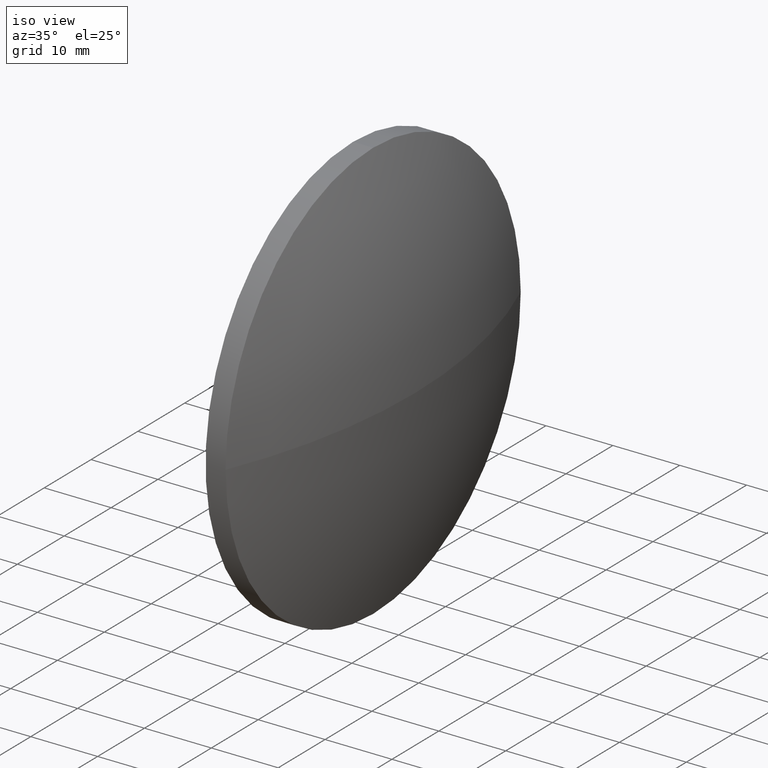
[diagram: clean part render]
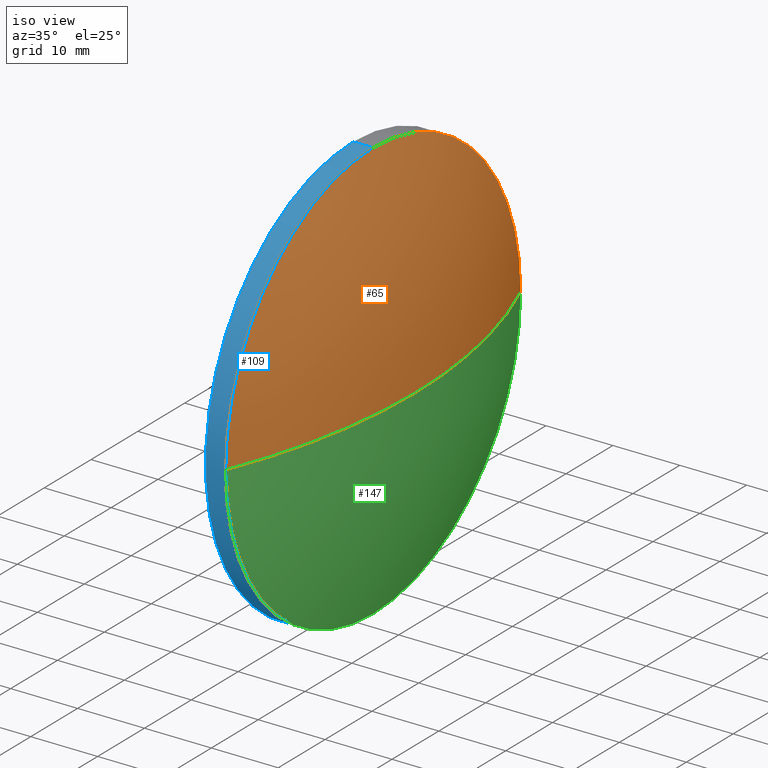
[diagram: same view with three faces highlighted in distinct colors, each labeled with its STEP entity id]
A machine part, iso view with three faces highlighted in distinct colors.
Their STEP definitions:

[orange] entity #65 — the highlighted spherical surface has radius 82.6272 mm.
#5 = ORIENTED_EDGE ( 'NONE', *, *, #80, .T. ) ;
#7 = DIRECTION ( 'NONE',  ( -0.0000000000000000000, 0.0000000000000000000, 1.000000000000000000 ) ) ;
#26 = ORIENTED_EDGE ( 'NONE', *, *, #96, .F. ) ;
#28 = CARTESIAN_POINT ( 'NONE',  ( 455.6110172033103300, 49.32132108647017100, -3.857637417314163500E-015 ) ) ;
#33 = CARTESIAN_POINT ( 'NONE',  ( 455.6110172033103300, 112.3213210864701900, 0.0000000000000000000 ) ) ;
#34 = EDGE_CURVE ( 'NONE', #60, #87, #118, .T. ) ;
#44 = FACE_OUTER_BOUND ( 'NONE', #173, .T. ) ;
#46 = DIRECTION ( 'NONE',  ( -0.0000000000000000000, 0.0000000000000000000, -1.000000000000000000 ) ) ;
#48 = CARTESIAN_POINT ( 'NONE',  ( 455.6110172033103300, 80.82132108647019200, 31.50000000000000000 ) ) ;
#55 = VERTEX_POINT ( 'NONE', #177 ) ;
#58 = AXIS2_PLACEMENT_3D ( 'NONE', #92, #7, #123 ) ;
#60 = VERTEX_POINT ( 'NONE', #28 ) ;
#64 = DIRECTION ( 'NONE',  ( -1.000000000000000000, -0.0000000000000000000, -0.0000000000000000000 ) ) ;
#65 = ADVANCED_FACE ( 'NONE', ( #44 ), #158, .T. ) ;
#73 = AXIS2_PLACEMENT_3D ( 'NONE', #103, #46, #165 ) ;
#74 = CIRCLE ( 'NONE', #58, 82.62721153846142400 ) ;
#76 = CARTESIAN_POINT ( 'NONE',  ( 455.6110172033103300, 80.82132108647019200, 0.0000000000000000000 ) ) ;
#77 = DIRECTION ( 'NONE',  ( 0.0000000000000000000, 0.0000000000000000000, 1.000000000000000000 ) ) ;
#79 = DIRECTION ( 'NONE',  ( -1.000000000000000000, -0.0000000000000000000, -0.0000000000000000000 ) ) ;
#80 = EDGE_CURVE ( 'NONE', #55, #91, #74, .T. ) ;
#87 = VERTEX_POINT ( 'NONE', #48 ) ;
#91 = VERTEX_POINT ( 'NONE', #33 ) ;
#92 = CARTESIAN_POINT ( 'NONE',  ( 379.2238056648489000, 80.82132108647017800, 0.0000000000000000000 ) ) ;
#94 = CIRCLE ( 'NONE', #115, 82.62721153846141000 ) ;
#96 = EDGE_CURVE ( 'NONE', #87, #91, #168, .T. ) ;
#99 = ORIENTED_EDGE ( 'NONE', *, *, #141, .F. ) ;
#103 = CARTESIAN_POINT ( 'NONE',  ( 379.2238056648489000, 80.82132108647017800, 0.0000000000000000000 ) ) ;
#108 = CARTESIAN_POINT ( 'NONE',  ( 379.2238056648489000, 80.82132108647017800, 0.0000000000000000000 ) ) ;
#115 = AXIS2_PLACEMENT_3D ( 'NONE', #108, #128, #151 ) ;
#116 = AXIS2_PLACEMENT_3D ( 'NONE', #76, #64, #77 ) ;
#118 = CIRCLE ( 'NONE', #116, 31.50000000000000000 ) ;
#123 = DIRECTION ( 'NONE',  ( 1.000000000000000000, 0.0000000000000000000, 0.0000000000000000000 ) ) ;
#125 = CARTESIAN_POINT ( 'NONE',  ( 455.6110172033103300, 80.82132108647019200, 0.0000000000000000000 ) ) ;
#127 = DIRECTION ( 'NONE',  ( 0.0000000000000000000, 0.0000000000000000000, 1.000000000000000000 ) ) ;
#128 = DIRECTION ( 'NONE',  ( 0.0000000000000000000, 1.224646799147353200E-016, -1.000000000000000000 ) ) ;
#141 = EDGE_CURVE ( 'NONE', #55, #60, #94, .T. ) ;
#150 = ORIENTED_EDGE ( 'NONE', *, *, #34, .F. ) ;
#151 = DIRECTION ( 'NONE',  ( 0.0000000000000000000, 1.000000000000000000, 1.224646799147353500E-016 ) ) ;
#158 = SPHERICAL_SURFACE ( 'NONE', #73, 82.62721153846142400 ) ;
#163 = AXIS2_PLACEMENT_3D ( 'NONE', #125, #79, #127 ) ;
#165 = DIRECTION ( 'NONE',  ( 0.0000000000000000000, 1.000000000000000000, 0.0000000000000000000 ) ) ;
#168 = CIRCLE ( 'NONE', #163, 31.50000000000000000 ) ;
#173 = EDGE_LOOP ( 'NONE', ( #99, #5, #26, #150 ) ) ;
#177 = CARTESIAN_POINT ( 'NONE',  ( 461.8510172033103300, 80.82132108647017800, 0.0000000000000000000 ) ) ;

[blue] entity #109 — the highlighted cylindrical surface (partial cylindrical patch) has radius 31.5 mm, axis along (-1, -0, -0).
#2 = AXIS2_PLACEMENT_3D ( 'NONE', #144, #104, #95 ) ;
#3 = VECTOR ( 'NONE', #45, 1000.000000000000000 ) ;
#4 = VECTOR ( 'NONE', #61, 1000.000000000000000 ) ;
#8 = EDGE_LOOP ( 'NONE', ( #83, #160, #145, #71, #162 ) ) ;
#10 = CIRCLE ( 'NONE', #157, 31.50000000000000000 ) ;
#12 = LINE ( 'NONE', #18, #3 ) ;
#13 = CARTESIAN_POINT ( 'NONE',  ( 452.6110172033103300, 80.82132108647019200, 0.0000000000000000000 ) ) ;
#14 = DIRECTION ( 'NONE',  ( -1.000000000000000000, -0.0000000000000000000, -0.0000000000000000000 ) ) ;
#16 = VERTEX_POINT ( 'NONE', #31 ) ;
#18 = CARTESIAN_POINT ( 'NONE',  ( 444.6402855359796100, 80.82132108647019200, 31.50000000000000000 ) ) ;
#28 = CARTESIAN_POINT ( 'NONE',  ( 455.6110172033103300, 49.32132108647017100, -3.857637417314163500E-015 ) ) ;
#31 = CARTESIAN_POINT ( 'NONE',  ( 452.6110172033103300, 80.82132108647019200, 31.50000000000000000 ) ) ;
#34 = EDGE_CURVE ( 'NONE', #60, #87, #118, .T. ) ;
#37 = CARTESIAN_POINT ( 'NONE',  ( 452.6110172033103300, 80.82132108647019200, -31.50000000000000000 ) ) ;
#42 = EDGE_CURVE ( 'NONE', #137, #60, #122, .T. ) ;
#45 = DIRECTION ( 'NONE',  ( -1.000000000000000000, -0.0000000000000000000, -0.0000000000000000000 ) ) ;
#48 = CARTESIAN_POINT ( 'NONE',  ( 455.6110172033103300, 80.82132108647019200, 31.50000000000000000 ) ) ;
#59 = AXIS2_PLACEMENT_3D ( 'NONE', #175, #119, #105 ) ;
#60 = VERTEX_POINT ( 'NONE', #28 ) ;
#61 = DIRECTION ( 'NONE',  ( -1.000000000000000000, -0.0000000000000000000, -0.0000000000000000000 ) ) ;
#63 = EDGE_CURVE ( 'NONE', #87, #16, #12, .T. ) ;
#64 = DIRECTION ( 'NONE',  ( -1.000000000000000000, -0.0000000000000000000, -0.0000000000000000000 ) ) ;
#71 = ORIENTED_EDGE ( 'NONE', *, *, #63, .T. ) ;
#76 = CARTESIAN_POINT ( 'NONE',  ( 455.6110172033103300, 80.82132108647019200, 0.0000000000000000000 ) ) ;
#77 = DIRECTION ( 'NONE',  ( 0.0000000000000000000, 0.0000000000000000000, 1.000000000000000000 ) ) ;
#83 = ORIENTED_EDGE ( 'NONE', *, *, #85, .F. ) ;
#85 = EDGE_CURVE ( 'NONE', #137, #139, #171, .T. ) ;
#87 = VERTEX_POINT ( 'NONE', #48 ) ;
#95 = DIRECTION ( 'NONE',  ( 0.0000000000000000000, 0.0000000000000000000, 1.000000000000000000 ) ) ;
#101 = FACE_OUTER_BOUND ( 'NONE', #8, .T. ) ;
#104 = DIRECTION ( 'NONE',  ( -1.000000000000000000, -0.0000000000000000000, -0.0000000000000000000 ) ) ;
#105 = DIRECTION ( 'NONE',  ( 0.0000000000000000000, 0.0000000000000000000, 1.000000000000000000 ) ) ;
#109 = ADVANCED_FACE ( 'NONE', ( #101 ), #179, .T. ) ;
#113 = DIRECTION ( 'NONE',  ( 0.0000000000000000000, 0.0000000000000000000, 1.000000000000000000 ) ) ;
#116 = AXIS2_PLACEMENT_3D ( 'NONE', #76, #64, #77 ) ;
#118 = CIRCLE ( 'NONE', #116, 31.50000000000000000 ) ;
#119 = DIRECTION ( 'NONE',  ( -1.000000000000000000, -0.0000000000000000000, -0.0000000000000000000 ) ) ;
#121 = EDGE_CURVE ( 'NONE', #139, #16, #10, .T. ) ;
#122 = CIRCLE ( 'NONE', #59, 31.50000000000000000 ) ;
#133 = CARTESIAN_POINT ( 'NONE',  ( 444.6402855359796100, 80.82132108647019200, -31.50000000000000000 ) ) ;
#137 = VERTEX_POINT ( 'NONE', #167 ) ;
#139 = VERTEX_POINT ( 'NONE', #37 ) ;
#144 = CARTESIAN_POINT ( 'NONE',  ( 444.6402855359796100, 80.82132108647019200, 0.0000000000000000000 ) ) ;
#145 = ORIENTED_EDGE ( 'NONE', *, *, #34, .T. ) ;
#157 = AXIS2_PLACEMENT_3D ( 'NONE', #13, #14, #113 ) ;
#160 = ORIENTED_EDGE ( 'NONE', *, *, #42, .T. ) ;
#162 = ORIENTED_EDGE ( 'NONE', *, *, #121, .F. ) ;
#167 = CARTESIAN_POINT ( 'NONE',  ( 455.6110172033103300, 80.82132108647019200, -31.50000000000000000 ) ) ;
#171 = LINE ( 'NONE', #133, #4 ) ;
#175 = CARTESIAN_POINT ( 'NONE',  ( 455.6110172033103300, 80.82132108647019200, 0.0000000000000000000 ) ) ;
#179 = CYLINDRICAL_SURFACE ( 'NONE', #2, 31.50000000000000000 ) ;

[green] entity #147 — the highlighted spherical surface has radius 82.6272 mm.
#7 = DIRECTION ( 'NONE',  ( -0.0000000000000000000, 0.0000000000000000000, 1.000000000000000000 ) ) ;
#28 = CARTESIAN_POINT ( 'NONE',  ( 455.6110172033103300, 49.32132108647017100, -3.857637417314163500E-015 ) ) ;
#33 = CARTESIAN_POINT ( 'NONE',  ( 455.6110172033103300, 112.3213210864701900, 0.0000000000000000000 ) ) ;
#36 = CARTESIAN_POINT ( 'NONE',  ( 455.6110172033103300, 80.82132108647019200, 0.0000000000000000000 ) ) ;
#38 = DIRECTION ( 'NONE',  ( 0.0000000000000000000, 1.000000000000000000, 0.0000000000000000000 ) ) ;
#42 = EDGE_CURVE ( 'NONE', #137, #60, #122, .T. ) ;
#47 = ORIENTED_EDGE ( 'NONE', *, *, #80, .F. ) ;
#55 = VERTEX_POINT ( 'NONE', #177 ) ;
#58 = AXIS2_PLACEMENT_3D ( 'NONE', #92, #7, #123 ) ;
#59 = AXIS2_PLACEMENT_3D ( 'NONE', #175, #119, #105 ) ;
#60 = VERTEX_POINT ( 'NONE', #28 ) ;
#69 = AXIS2_PLACEMENT_3D ( 'NONE', #36, #126, #78 ) ;
#74 = CIRCLE ( 'NONE', #58, 82.62721153846142400 ) ;
#75 = AXIS2_PLACEMENT_3D ( 'NONE', #184, #138, #38 ) ;
#78 = DIRECTION ( 'NONE',  ( 0.0000000000000000000, 0.0000000000000000000, 1.000000000000000000 ) ) ;
#80 = EDGE_CURVE ( 'NONE', #55, #91, #74, .T. ) ;
#86 = SPHERICAL_SURFACE ( 'NONE', #75, 82.62721153846142400 ) ;
#91 = VERTEX_POINT ( 'NONE', #33 ) ;
#92 = CARTESIAN_POINT ( 'NONE',  ( 379.2238056648489000, 80.82132108647017800, 0.0000000000000000000 ) ) ;
#94 = CIRCLE ( 'NONE', #115, 82.62721153846141000 ) ;
#97 = EDGE_LOOP ( 'NONE', ( #47, #140, #185, #114 ) ) ;
#105 = DIRECTION ( 'NONE',  ( 0.0000000000000000000, 0.0000000000000000000, 1.000000000000000000 ) ) ;
#108 = CARTESIAN_POINT ( 'NONE',  ( 379.2238056648489000, 80.82132108647017800, 0.0000000000000000000 ) ) ;
#114 = ORIENTED_EDGE ( 'NONE', *, *, #161, .F. ) ;
#115 = AXIS2_PLACEMENT_3D ( 'NONE', #108, #128, #151 ) ;
#119 = DIRECTION ( 'NONE',  ( -1.000000000000000000, -0.0000000000000000000, -0.0000000000000000000 ) ) ;
#122 = CIRCLE ( 'NONE', #59, 31.50000000000000000 ) ;
#123 = DIRECTION ( 'NONE',  ( 1.000000000000000000, 0.0000000000000000000, 0.0000000000000000000 ) ) ;
#126 = DIRECTION ( 'NONE',  ( -1.000000000000000000, -0.0000000000000000000, -0.0000000000000000000 ) ) ;
#128 = DIRECTION ( 'NONE',  ( 0.0000000000000000000, 1.224646799147353200E-016, -1.000000000000000000 ) ) ;
#131 = CIRCLE ( 'NONE', #69, 31.50000000000000000 ) ;
#137 = VERTEX_POINT ( 'NONE', #167 ) ;
#138 = DIRECTION ( 'NONE',  ( -0.0000000000000000000, 0.0000000000000000000, -1.000000000000000000 ) ) ;
#140 = ORIENTED_EDGE ( 'NONE', *, *, #141, .T. ) ;
#141 = EDGE_CURVE ( 'NONE', #55, #60, #94, .T. ) ;
#147 = ADVANCED_FACE ( 'NONE', ( #174 ), #86, .T. ) ;
#151 = DIRECTION ( 'NONE',  ( 0.0000000000000000000, 1.000000000000000000, 1.224646799147353500E-016 ) ) ;
#161 = EDGE_CURVE ( 'NONE', #91, #137, #131, .T. ) ;
#167 = CARTESIAN_POINT ( 'NONE',  ( 455.6110172033103300, 80.82132108647019200, -31.50000000000000000 ) ) ;
#174 = FACE_OUTER_BOUND ( 'NONE', #97, .T. ) ;
#175 = CARTESIAN_POINT ( 'NONE',  ( 455.6110172033103300, 80.82132108647019200, 0.0000000000000000000 ) ) ;
#177 = CARTESIAN_POINT ( 'NONE',  ( 461.8510172033103300, 80.82132108647017800, 0.0000000000000000000 ) ) ;
#184 = CARTESIAN_POINT ( 'NONE',  ( 379.2238056648489000, 80.82132108647017800, 0.0000000000000000000 ) ) ;
#185 = ORIENTED_EDGE ( 'NONE', *, *, #42, .F. ) ;